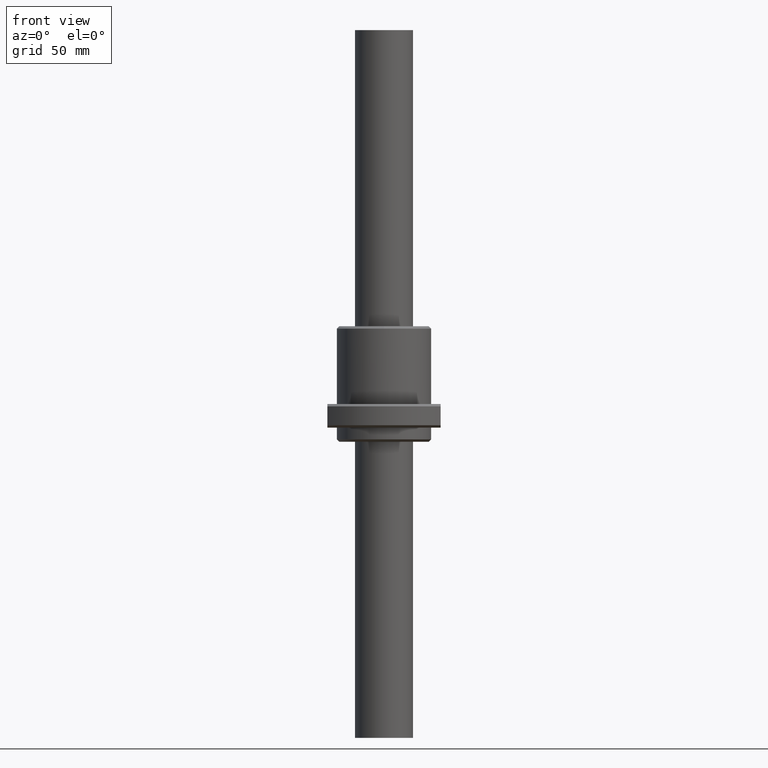
[diagram: clean part render]
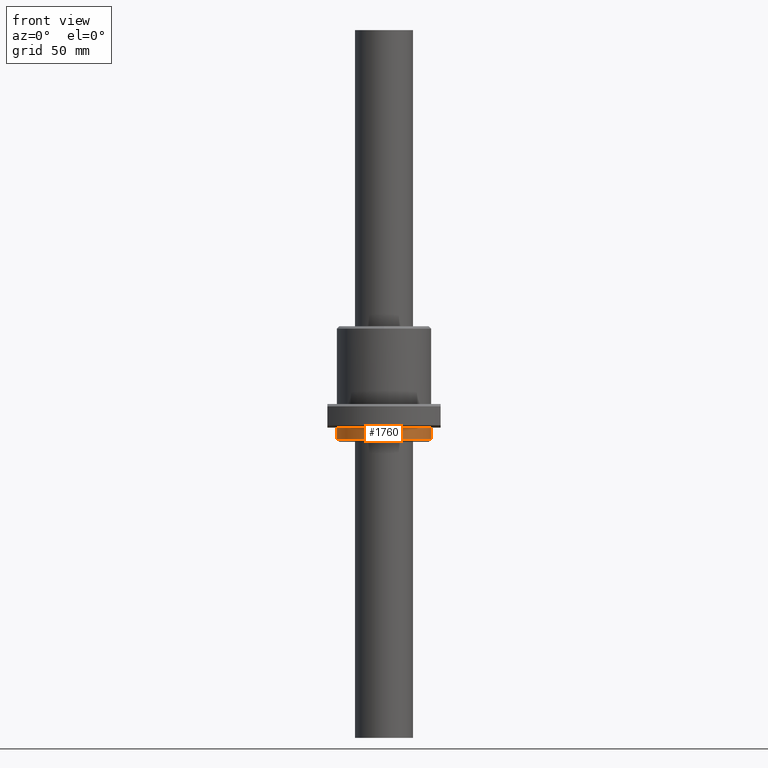
[diagram: same view with one face highlighted and labeled with its STEP entity id]
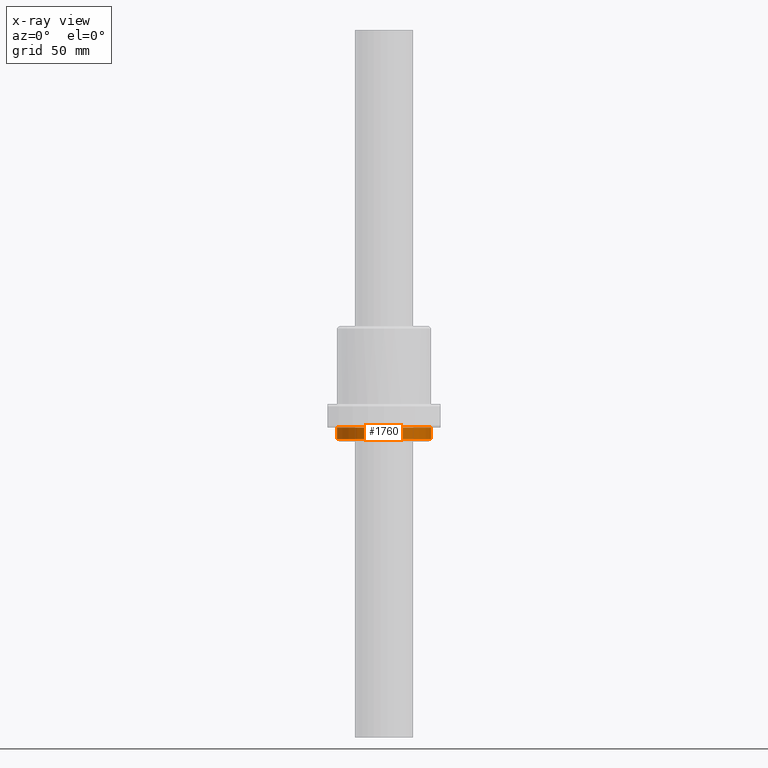
[diagram: x-ray of the same camera — body ghosted, the highlighted face saturated]
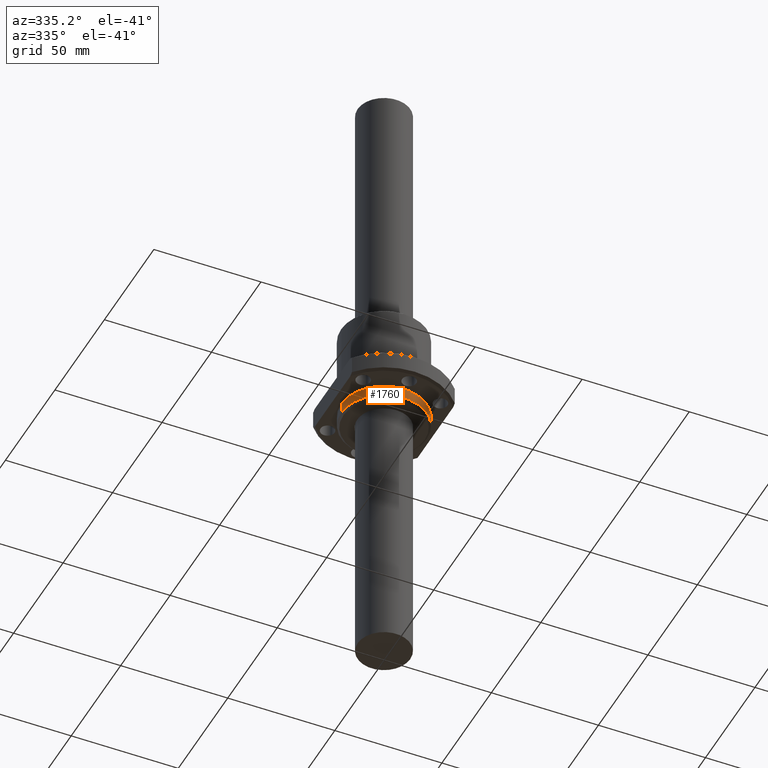
[diagram: same view with one face highlighted and labeled with its STEP entity id]
A machine part, front view. The second image highlights one B-rep face of the part: STEP entity #1760.
The next image is the same camera in x-ray: the body ghosted, the highlighted face saturated — about 0% of this face is hidden behind the body in this view.
A second angle (auxiliary view) of the same face is appended — the face is thin or edge-on in the first view.
In plain terms, the highlighted cylindrical surface (partial cylindrical patch) has radius 20 mm, axis along (0, 0, -1).
Its self-contained STEP definition (entity closure, byte-faithful):
#8 = FACE_OUTER_BOUND ( 'NONE', #321, .T. ) ;
#71 = CYLINDRICAL_SURFACE ( 'NONE', #1827, 19.99999000000000400 ) ;
#116 = DIRECTION ( 'NONE',  ( 0.0000000000000000000, -0.0000000000000000000, 1.000000000000000000 ) ) ;
#118 = CARTESIAN_POINT ( 'NONE',  ( -19.99999000000000400, 2.449292373647907800E-015, -5.999994000000000000 ) ) ;
#126 = LINE ( 'NONE', #118, #305 ) ;
#135 = ORIENTED_EDGE ( 'NONE', *, *, #1125, .F. ) ;
#238 = AXIS2_PLACEMENT_3D ( 'NONE', #493, #488, #487 ) ;
#305 = VECTOR ( 'NONE', #116, 1000.000000000000000 ) ;
#317 = EDGE_CURVE ( 'NONE', #1165, #581, #126, .T. ) ;
#321 = EDGE_LOOP ( 'NONE', ( #476, #1351, #786, #135 ) ) ;
#380 = EDGE_CURVE ( 'NONE', #504, #723, #1775, .T. ) ;
#412 = CARTESIAN_POINT ( 'NONE',  ( -19.99999000000000400, 2.449292373647907800E-015, -5.999994000000000000 ) ) ;
#476 = ORIENTED_EDGE ( 'NONE', *, *, #317, .F. ) ;
#487 = DIRECTION ( 'NONE',  ( 1.000000000000000000, 0.0000000000000000000, 0.0000000000000000000 ) ) ;
#488 = DIRECTION ( 'NONE',  ( 0.0000000000000000000, 0.0000000000000000000, 1.000000000000000000 ) ) ;
#493 = CARTESIAN_POINT ( 'NONE',  ( 0.0000000000000000000, 0.0000000000000000000, -1.000000000000000000 ) ) ;
#504 = VERTEX_POINT ( 'NONE', #1463 ) ;
#581 = VERTEX_POINT ( 'NONE', #1308 ) ;
#723 = VERTEX_POINT ( 'NONE', #1050 ) ;
#786 = ORIENTED_EDGE ( 'NONE', *, *, #380, .T. ) ;
#802 = VECTOR ( 'NONE', #1761, 1000.000000000000000 ) ;
#1050 = CARTESIAN_POINT ( 'NONE',  ( 19.99999000000000400, 2.449292373647907800E-015, -1.000000000000000000 ) ) ;
#1114 = AXIS2_PLACEMENT_3D ( 'NONE', #1811, #1808, #1805 ) ;
#1125 = EDGE_CURVE ( 'NONE', #581, #723, #1763, .T. ) ;
#1165 = VERTEX_POINT ( 'NONE', #412 ) ;
#1308 = CARTESIAN_POINT ( 'NONE',  ( -19.99999000000000400, 0.0000000000000000000, -1.000000000000000000 ) ) ;
#1349 = CIRCLE ( 'NONE', #1114, 19.99999000000000400 ) ;
#1351 = ORIENTED_EDGE ( 'NONE', *, *, #1520, .T. ) ;
#1463 = CARTESIAN_POINT ( 'NONE',  ( 19.99999000000000400, 0.0000000000000000000, -5.999994000000000000 ) ) ;
#1520 = EDGE_CURVE ( 'NONE', #1165, #504, #1349, .T. ) ;
#1625 = DIRECTION ( 'NONE',  ( 1.000000000000000000, 0.0000000000000000000, 0.0000000000000000000 ) ) ;
#1628 = DIRECTION ( 'NONE',  ( 0.0000000000000000000, -0.0000000000000000000, 1.000000000000000000 ) ) ;
#1631 = CARTESIAN_POINT ( 'NONE',  ( 0.0000000000000000000, 0.0000000000000000000, -5.999994000000000000 ) ) ;
#1760 = ADVANCED_FACE ( 'NONE', ( #8 ), #71, .T. ) ;
#1761 = DIRECTION ( 'NONE',  ( 0.0000000000000000000, -0.0000000000000000000, 1.000000000000000000 ) ) ;
#1763 = CIRCLE ( 'NONE', #238, 19.99999000000000400 ) ;
#1765 = CARTESIAN_POINT ( 'NONE',  ( 19.99999000000000400, 0.0000000000000000000, -5.999994000000000000 ) ) ;
#1775 = LINE ( 'NONE', #1765, #802 ) ;
#1805 = DIRECTION ( 'NONE',  ( 1.000000000000000000, 0.0000000000000000000, 0.0000000000000000000 ) ) ;
#1808 = DIRECTION ( 'NONE',  ( 0.0000000000000000000, -0.0000000000000000000, 1.000000000000000000 ) ) ;
#1811 = CARTESIAN_POINT ( 'NONE',  ( 0.0000000000000000000, 0.0000000000000000000, -5.999994000000000000 ) ) ;
#1827 = AXIS2_PLACEMENT_3D ( 'NONE', #1631, #1628, #1625 ) ;